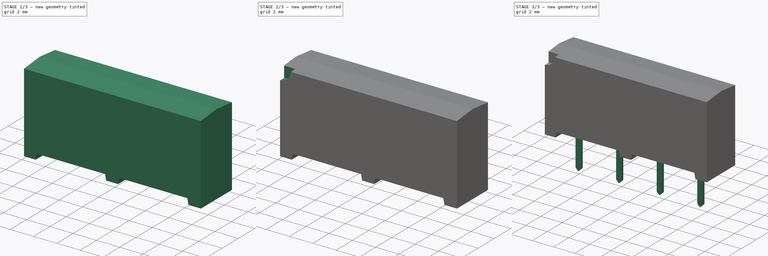
[diagram: build sequence overview — one tinted view per stage of 3, left to right]
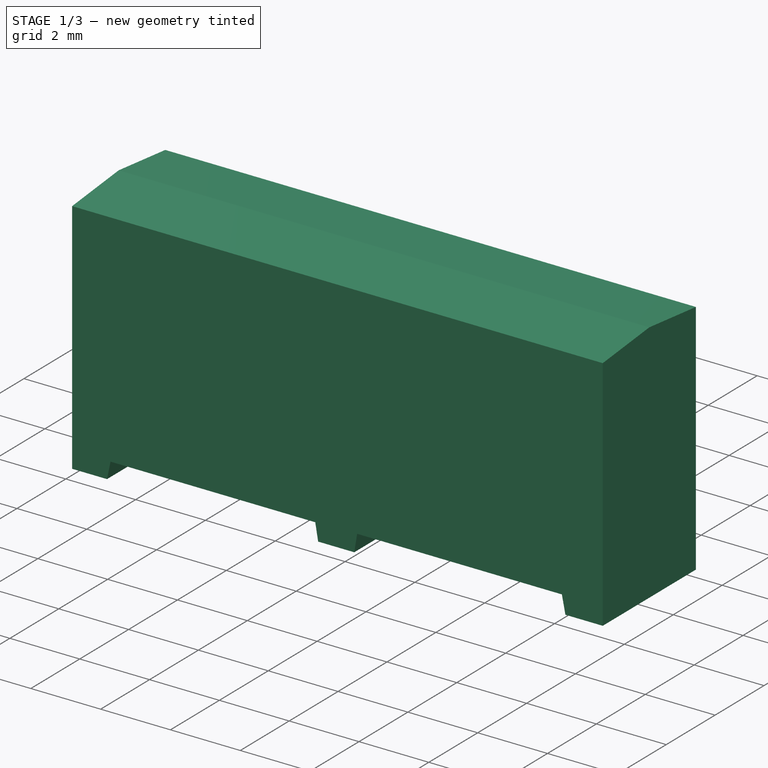
[diagram: stage 1 of 3 — iso view after this stage's code; geometry added in this stage tinted green]
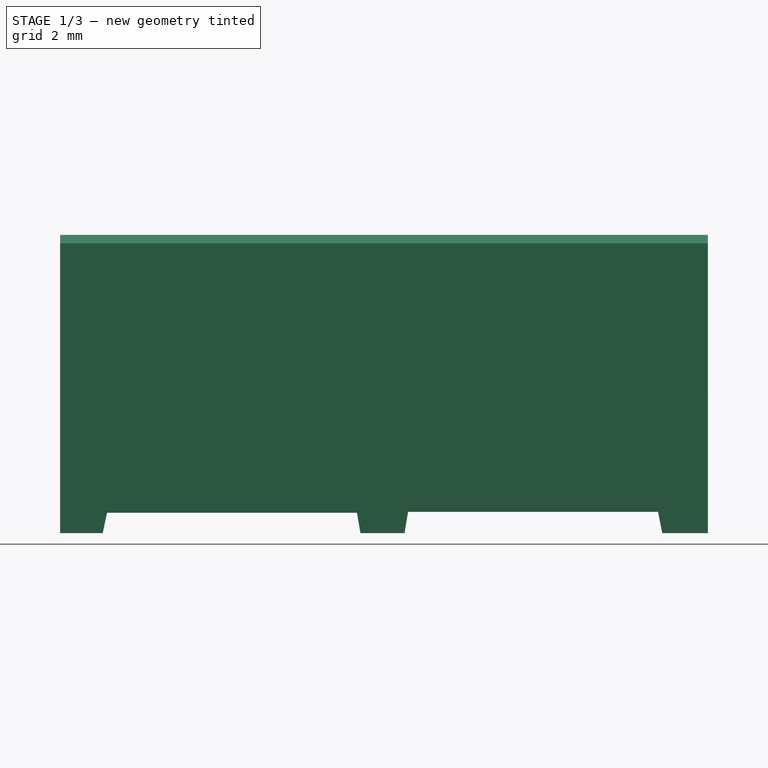
[diagram: stage 1 of 3 — front view after this stage's code; geometry added in this stage tinted green]
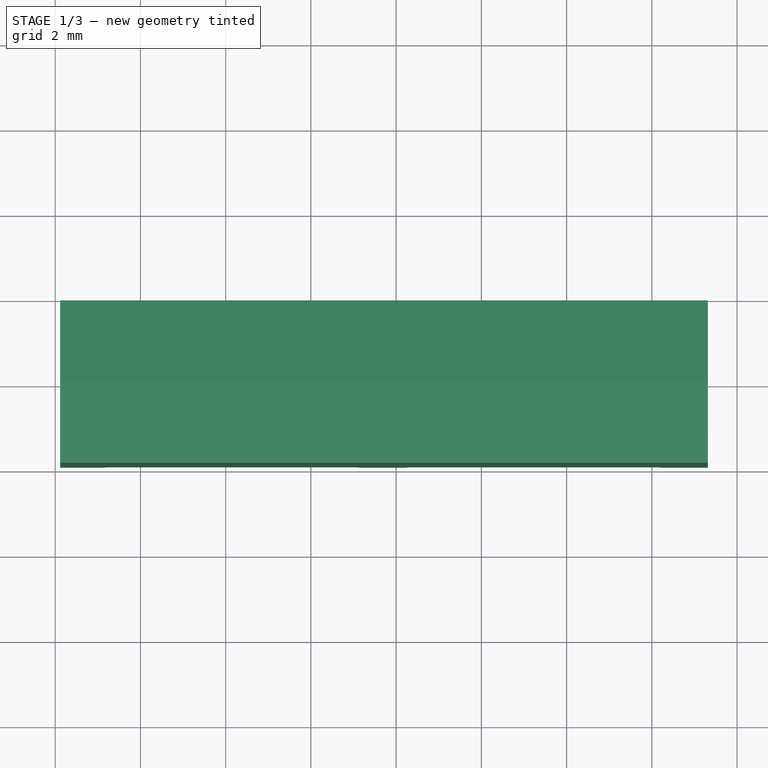
[diagram: stage 1 of 3 — top view after this stage's code; geometry added in this stage tinted green]
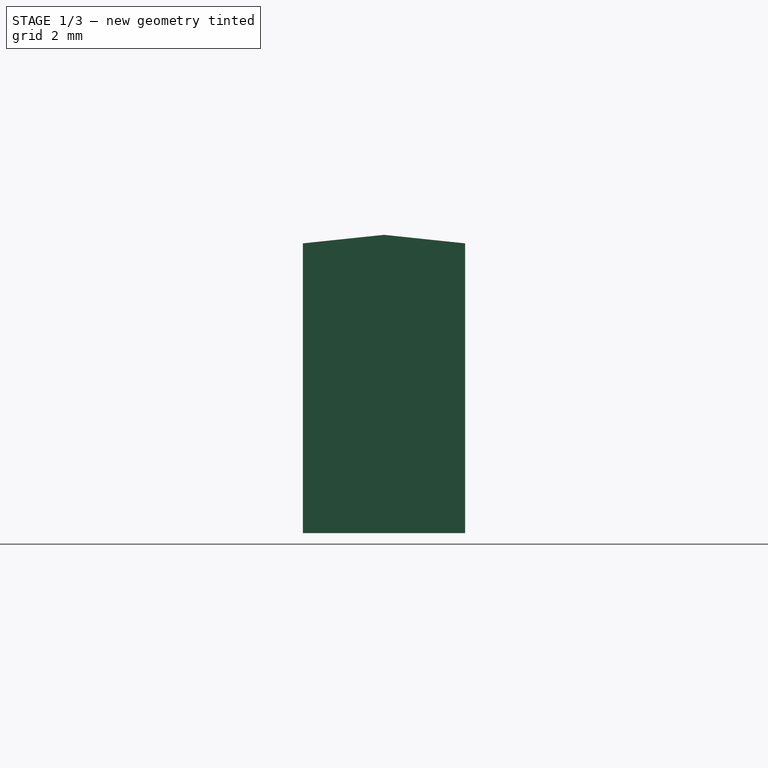
[diagram: stage 1 of 3 — right view after this stage's code; geometry added in this stage tinted green]
FCSTD DOCUMENT  (FreeCAD 0.16R6712 (Git))
Label: Relay_SPST_StandexMeder_MS_Form1AB
License: All rights reserved
LicenseURL: http://en.wikipedia.org/wiki/All_rights_reserved
objects: Sketcher::SketchObject×4, Part::Feature×3, PartDesign::Pad×2, PartDesign::Pocket×2, App::DocumentObjectGroup×1, Part::MultiFuse×1
note: 16 computed .brp shape members not serialized (recipe doc carries the construction recipe); baked Part::Feature solids carry a one-line shape summary decoded from their .brp

FEATURE [Sketcher::SketchObject] Sketch
  Placement = pos=(-1.885,0,0) rot=(0.57735,0.57735,0.57735;2.0944rad)
  expr: Placement.Base.x = -1 * (15.2 - 11.43) / 2
  sketch-geometry (6):
    g0: LineSegment StartX=-1.905 StartY=0.1 StartZ=0 EndX=1.905 EndY=0.1 EndZ=0
    g1: LineSegment StartX=1.905 StartY=0.1 StartZ=0 EndX=1.905 EndY=6.9 EndZ=0
    g2: LineSegment StartX=1.905 StartY=6.9 StartZ=0 EndX=0 EndY=7.1 EndZ=0
    g3: LineSegment StartX=0 StartY=7.1 StartZ=0 EndX=-1.905 EndY=6.9 EndZ=0
    g4: LineSegment StartX=-1.905 StartY=6.9 StartZ=0 EndX=-1.905 EndY=0.1 EndZ=0
    g5: GeomPoint [constr] X=0 Y=0.1 Z=0
  constraints (17):
    c: Horizontal(g0)
    c: Coincident(g1,g0)
    c: Vertical(g1)
    c: PointOnObject(g2,g-2)
    c: Coincident(g3,g2)
    c: Vertical(g4)
    c: Coincident(g0,g4)
    c: Coincident(g3,g4)
    c: Equal(g1,g4)
    c: PointOnObject(g5,g-2)
    c: PointOnObject(g5,g0)
    c: Symmetric(g0,g0,g5)
    c: Coincident(g1,g2)
    c: DistanceY(g1,g1) = 6.8
    c: DistanceY(g1,g2) = 0.2
    c: DistanceY(g-1,g0) = 0.1
    c: DistanceX(g0,g0) = 3.81
FEATURE [PartDesign::Pad] Pad
  Length = 15.2
  Length2 = 100
  Placement = pos=(-1.885,0,0) rot=(0.57735,0.57735,0.57735;2.0944rad)
  Sketch = -> Sketch
  Type = 0
FEATURE [Sketcher::SketchObject] Sketch001
  ExternalGeometry = -> [Pad]
  Placement = pos=(-1.885,-1.905,0) rot=(0.57735,0.57735,-0.57735;2.0944rad)
  Support = -> Pad [Face5]
  sketch-geometry (12):
    g0: LineSegment StartX=-0.1 StartY=14.13 StartZ=0 EndX=-0.6 EndY=14.03 EndZ=0
    g1: LineSegment StartX=-0.578864 StartY=1.1 StartZ=0 EndX=-0.1 EndY=1 EndZ=0
    g2: LineSegment [constr] StartX=-0.1 StartY=14.13 StartZ=0 EndX=-0.1 EndY=13.8204 EndZ=0
    g3: LineSegment [constr] StartX=-0.1 StartY=0 StartZ=0 EndX=-0.1 EndY=1 EndZ=0
    g4: LineSegment StartX=-0.6 StartY=14.03 StartZ=0 EndX=-0.6 EndY=8.165 EndZ=0
    g5: LineSegment StartX=-0.6 StartY=8.165 StartZ=0 EndX=0 EndY=8.065 EndZ=0
    g6: LineSegment StartX=0 StartY=8.065 StartZ=0 EndX=0 EndY=7.065 EndZ=0
    g7: LineSegment StartX=0 StartY=7.065 StartZ=0 EndX=-0.578864 EndY=6.965 EndZ=0
    g8: LineSegment StartX=-0.578864 StartY=6.965 StartZ=0 EndX=-0.578864 EndY=1.1 EndZ=0
    g9: LineSegment StartX=-0.1 StartY=1 StartZ=0 EndX=0.634477 EndY=1 EndZ=0
    g10: LineSegment StartX=0.634477 StartY=1 StartZ=0 EndX=0.634477 EndY=14.13 EndZ=0
    g11: LineSegment StartX=0.634477 StartY=14.13 StartZ=0 EndX=-0.1 EndY=14.13 EndZ=0
  constraints (30):
    c: Coincident(g2,g0)
    c: Coincident(g3,g1)
    c: DistanceY(g3,g1) = 1
    c: DistanceY(g1,g1) = 0.1
    c: DistanceY(g0,g0) = 0.1
    c: DistanceX(g0,g0) = 0.5
    c: Coincident(g4,g0)
    c: Vertical(g4)
    c: Coincident(g5,g4)
    c: Coincident(g6,g5)
    c: PointOnObject(g6,g-2)
    c: Vertical(g6)
    c: Coincident(g7,g6)
    c: Coincident(g8,g7)
    c: Coincident(g8,g1)
    c: Vertical(g8)
    c: Coincident(g9,g1)
    c: Coincident(g10,g9)
    c: Vertical(g10)
    c: Coincident(g11,g10)
    c: Coincident(g11,g0)
    c: Horizontal(g11)
    c: Horizontal(g9)
    c: Equal(g8,g4)
    c: DistanceY(g7,g6) = 0.1
    c: DistanceY(g5,g4) = 0.1
    c: DistanceY(g6,g6) = 1
    c: PointOnObject(g3,g-1)
    c: DistanceY(g10,g10) = 13.13
    c: Vertical(g2)
FEATURE [PartDesign::Pocket] Pocket
  Length = 5
  Placement = pos=(-1.885,0,0) rot=(0.57735,0.57735,0.57735;2.0944rad)
  Sketch = -> Sketch001
  Type = 1
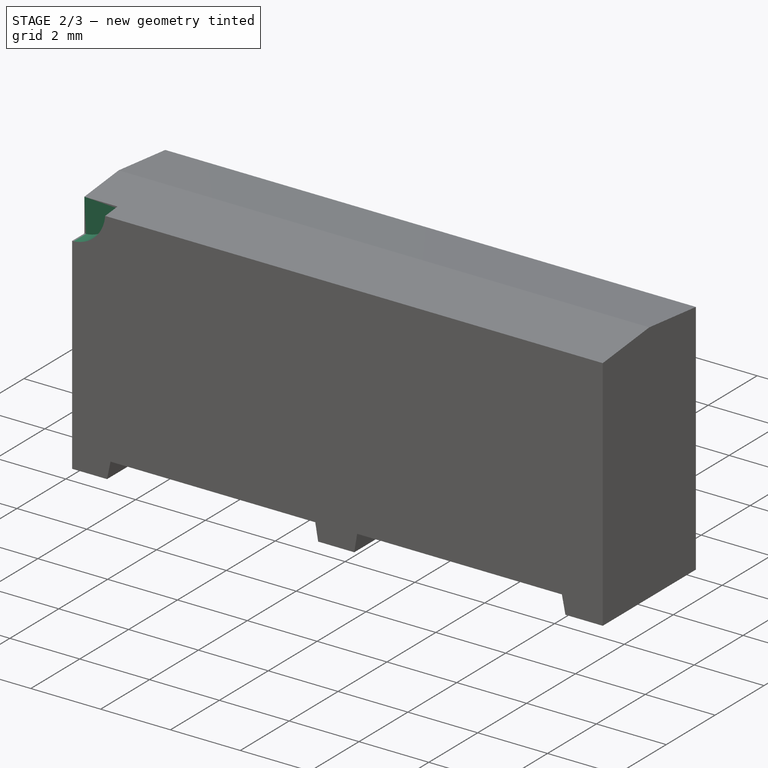
[diagram: stage 2 of 3 — iso view after this stage's code; geometry added in this stage tinted green]
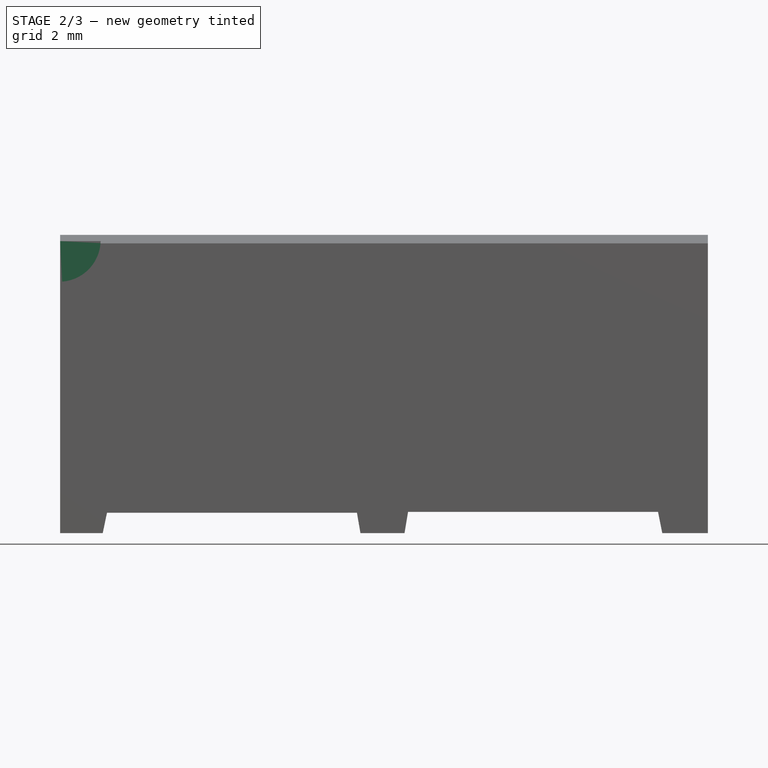
[diagram: stage 2 of 3 — front view after this stage's code; geometry added in this stage tinted green]
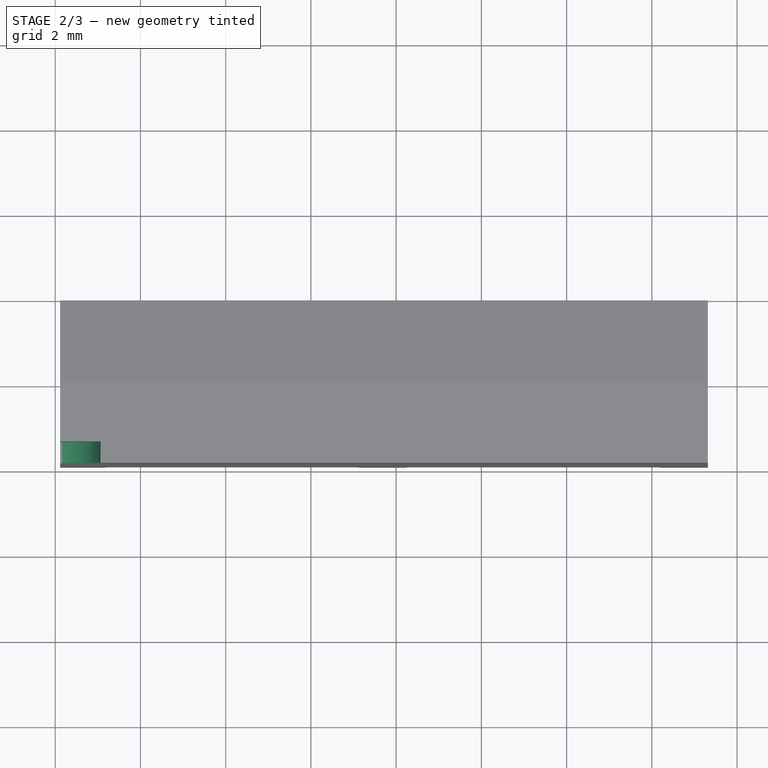
[diagram: stage 2 of 3 — top view after this stage's code; geometry added in this stage tinted green]
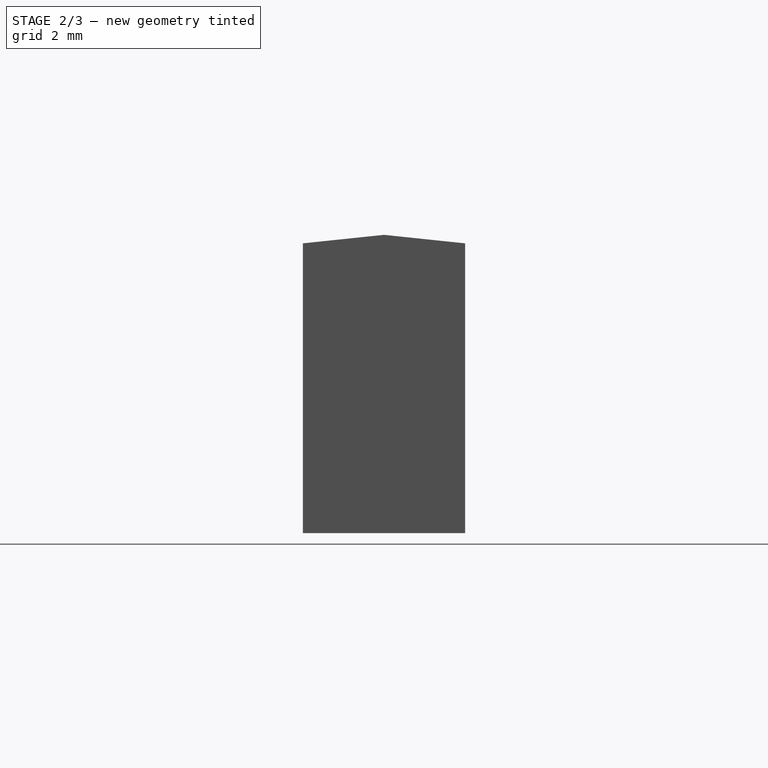
[diagram: stage 2 of 3 — right view after this stage's code; geometry added in this stage tinted green]
FEATURE [Part::Feature] FusionAxisZ1  label="Z"
  shape: bbox 0.8 x 0.8 x 14 mm, 8 faces (baked)
FEATURE [Part::Feature] FusionAxisY1  label="Y"
  Placement = pos=(0,0,0.05) rot=(-1,0,0;1.5708rad)
  shape: bbox 0.8 x 14 x 0.8 mm, 8 faces (baked)
FEATURE [Part::Feature] FusionAxisX1  label="X"
  Placement = pos=(0,-0.05,0) rot=(0,1,0;1.5708rad)
  shape: bbox 14 x 0.8 x 0.8 mm, 8 faces (baked)
FEATURE [App::DocumentObjectGroup] axis
  Group = -> [FusionAxisZ1,FusionAxisY1,FusionAxisX1]
FEATURE [Sketcher::SketchObject] Sketch003
  Placement = pos=(-1.885,-1.905,0) rot=(0.57735,0.57735,-0.57735;2.0944rad)
  Support = -> Pocket [Face5]
  sketch-geometry (5):
    g0: LineSegment StartX=-7 StartY=-0.05 StartZ=0 EndX=-6 EndY=-0.05 EndZ=0
    g1: LineSegment StartX=-6 StartY=-0.05 StartZ=0 EndX=-6 EndY=-0.025 EndZ=0
    g2: LineSegment StartX=-6.975 StartY=0.95 StartZ=0 EndX=-7 EndY=0.95 EndZ=0
    g3: LineSegment StartX=-7 StartY=0.95 StartZ=0 EndX=-7 EndY=-0.05 EndZ=0
    g4: ArcOfCircle CenterX=-6.975 CenterY=-0.025 CenterZ=0 NormalX=0 NormalY=0 NormalZ=1 Radius=0.975 StartAngle=0 EndAngle=1.5708
  constraints (14):
    c: Coincident(g2,g3)
    c: Coincident(g3,g0)
    c: Horizontal(g0)
    c: Horizontal(g2)
    c: Vertical(g3)
    c: Tangent(g1,g4) = -1.5708
    c: Tangent(g2,g4) = -1.5708
    c: Vertical(g1)
    c: DistanceX(g0,g0) = 1
    c: DistanceX(g0,g-1) = 7
    c: DistanceY(g3,g3) = 1
    c: Coincident(g1,g0)
    c: DistanceY(g0,g-1) = 0.05
    c: DistanceY(g0,g1) = 0.025
FEATURE [PartDesign::Pocket] Pocket001
  Length = 0.5
  Placement = pos=(-1.885,0,0) rot=(0.57735,0.57735,0.57735;2.0944rad)
  Sketch = -> Sketch003
  Type = 0
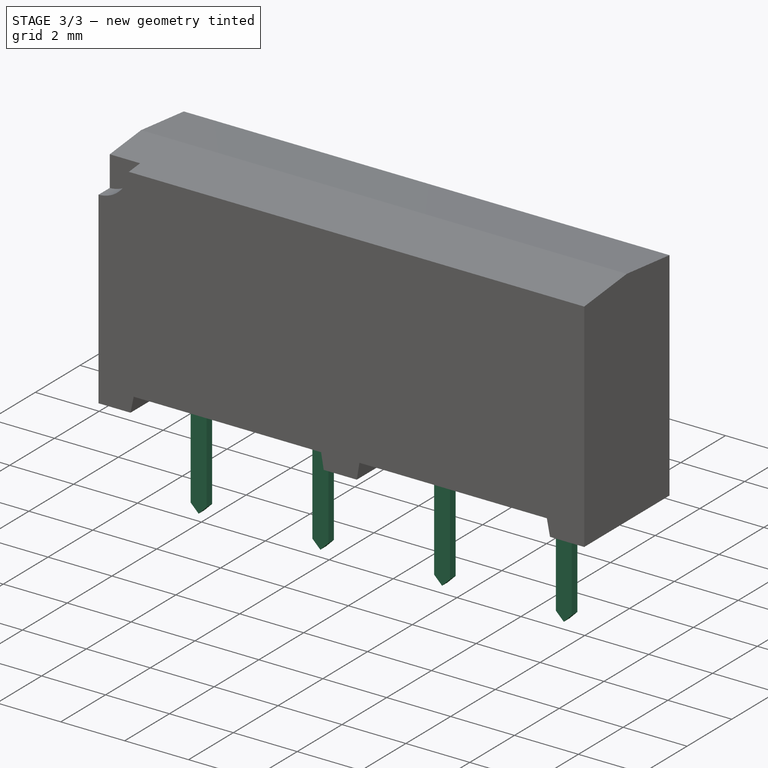
[diagram: stage 3 of 3 — iso view after this stage's code; geometry added in this stage tinted green]
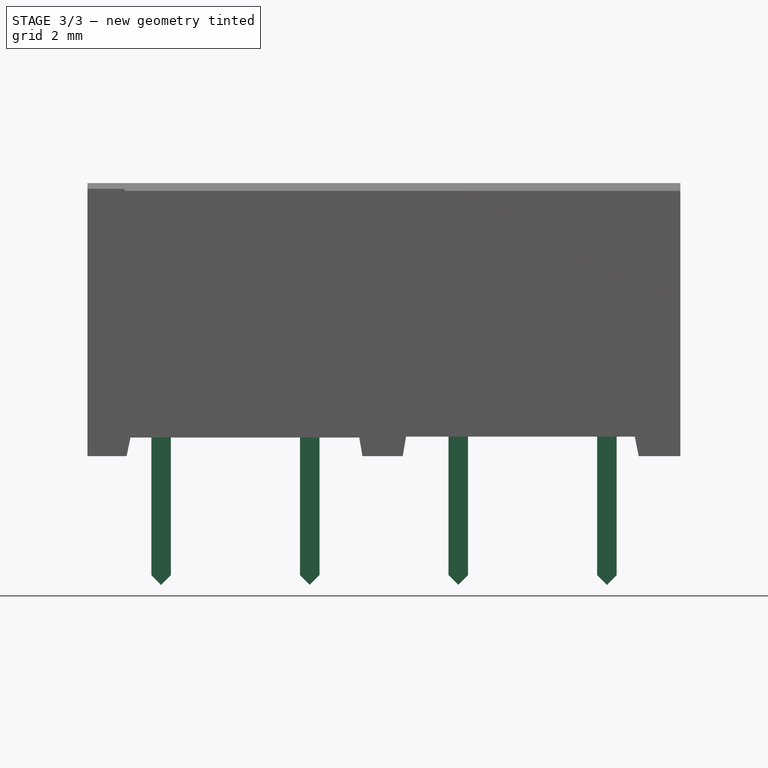
[diagram: stage 3 of 3 — front view after this stage's code; geometry added in this stage tinted green]
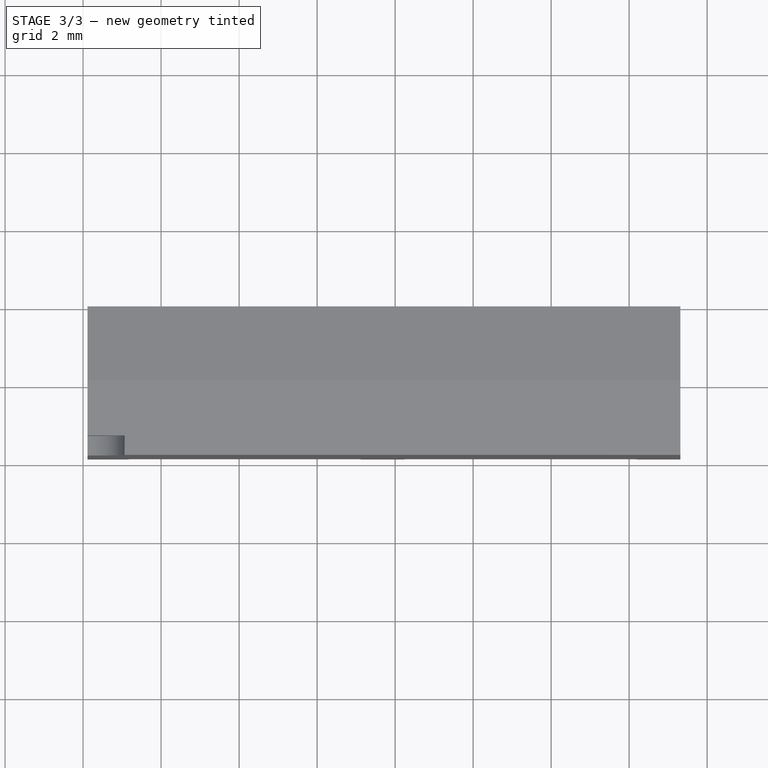
[diagram: stage 3 of 3 — top view after this stage's code; geometry added in this stage tinted green]
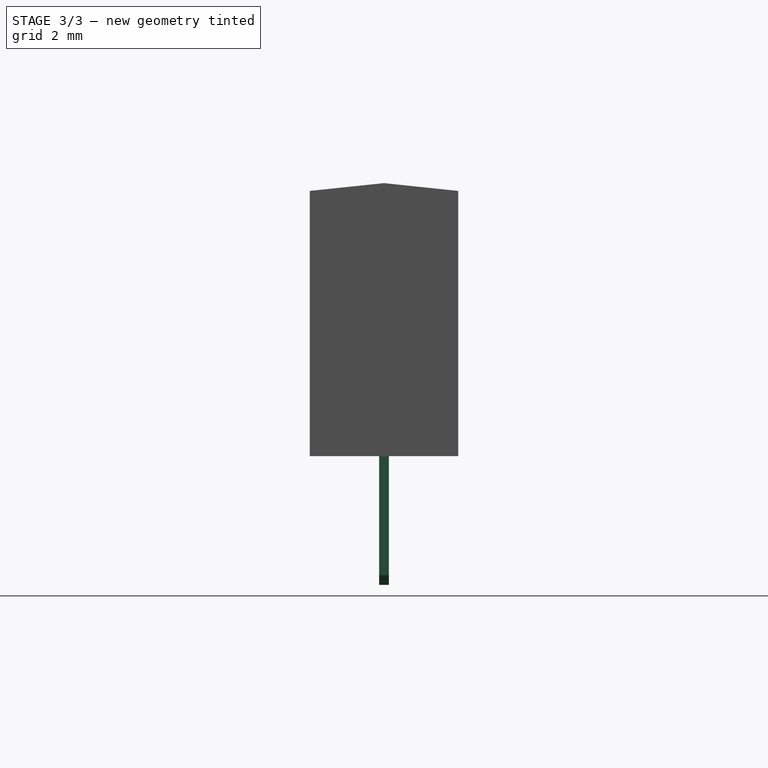
[diagram: stage 3 of 3 — right view after this stage's code; geometry added in this stage tinted green]
FEATURE [Sketcher::SketchObject] Sketch002
  Placement = pos=(0,0,0) rot=(1,0,0;1.5708rad)
  sketch-geometry (27):
    g0: LineSegment StartX=-0.25 StartY=1 StartZ=0 EndX=0.25 EndY=1 EndZ=0
    g1: LineSegment StartX=0.25 StartY=1 StartZ=0 EndX=0.25 EndY=-2.95 EndZ=0
    g2: LineSegment StartX=0.25 StartY=-2.95 StartZ=0 EndX=0 EndY=-3.2 EndZ=0
    g3: LineSegment StartX=0 StartY=-3.2 StartZ=0 EndX=-0.25 EndY=-2.95 EndZ=0
    g4: LineSegment StartX=-0.25 StartY=-2.95 StartZ=0 EndX=-0.25 EndY=1 EndZ=0
    g5: LineSegment StartX=3.56 StartY=1 StartZ=0 EndX=4.06 EndY=1 EndZ=0
    g6: LineSegment StartX=4.06 StartY=1 StartZ=0 EndX=4.06 EndY=-2.95 EndZ=0
    g7: LineSegment StartX=4.06 StartY=-2.95 StartZ=0 EndX=3.81 EndY=-3.2 EndZ=0
    g8: LineSegment StartX=3.81 StartY=-3.2 StartZ=0 EndX=3.56 EndY=-2.95 EndZ=0
    g9: LineSegment StartX=3.56 StartY=-2.95 StartZ=0 EndX=3.56 EndY=1 EndZ=0
    g10: LineSegment StartX=7.37 StartY=1 StartZ=0 EndX=7.87 EndY=1 EndZ=0
    g11: LineSegment StartX=7.87 StartY=1 StartZ=0 EndX=7.87 EndY=-2.95 EndZ=0
    g12: LineSegment StartX=7.87 StartY=-2.95 StartZ=0 EndX=7.62 EndY=-3.2 EndZ=0
    g13: LineSegment StartX=7.62 StartY=-3.2 StartZ=0 EndX=7.37 EndY=-2.95 EndZ=0
    g14: LineSegment StartX=7.37 StartY=-2.95 StartZ=0 EndX=7.37 EndY=1 EndZ=0
    g15: LineSegment StartX=11.18 StartY=1 StartZ=0 EndX=11.68 EndY=1 EndZ=0
    g16: LineSegment StartX=11.68 StartY=1 StartZ=0 EndX=11.68 EndY=-2.95 EndZ=0
    g17: LineSegment StartX=11.68 StartY=-2.95 StartZ=0 EndX=11.43 EndY=-3.2 EndZ=0
    g18: LineSegment StartX=11.43 StartY=-3.2 StartZ=0 EndX=11.18 EndY=-2.95 EndZ=0
    g19: LineSegment StartX=11.18 StartY=-2.95 StartZ=0 EndX=11.18 EndY=1 EndZ=0
    g20: LineSegment [constr] StartX=3.81 StartY=1 StartZ=0 EndX=3.81 EndY=-3.2 EndZ=0
    g21: LineSegment [constr] StartX=7.62 StartY=1 StartZ=0 EndX=7.62 EndY=-3.2 EndZ=0
    g22: LineSegment [constr] StartX=11.43 StartY=1 StartZ=0 EndX=11.43 EndY=-3.2 EndZ=0
    g23: GeomPoint [constr] X=0 Y=1 Z=0
    g24: LineSegment [constr] StartX=11.18 StartY=1 StartZ=0 EndX=-0.25 EndY=1 EndZ=0
    g25: LineSegment [constr] StartX=0 StartY=-3.2 StartZ=0 EndX=11.43 EndY=-3.2 EndZ=0
    g26: LineSegment [constr] StartX=0.25 StartY=-2.95 StartZ=0 EndX=11.68 EndY=-2.95 EndZ=0
  constraints (75):
    c: Horizontal(g0)
    c: Coincident(g2,g1)
    c: PointOnObject(g2,g-2)
    c: Coincident(g2,g3)
    c: DistanceY(g2,g3) = 0.25
    c: Equal(g1,g4)
    c: DistanceY(g-1,g0) = 1
    c: Horizontal(g5)
    c: Vertical(g6)
    c: Coincident(g7,g6)
    c: Coincident(g9,g5)
    c: Vertical(g9)
    c: Coincident(g8,g9)
    c: Coincident(g7,g8)
    c: Equal(g6,g9)
    c: Coincident(g5,g6)
    c: Horizontal(g10)
    c: Vertical(g11)
    c: Coincident(g12,g11)
    c: Coincident(g14,g10)
    c: Vertical(g14)
    c: Coincident(g13,g14)
    c: Coincident(g12,g13)
    c: Equal(g11,g14)
    c: Coincident(g10,g11)
    c: Horizontal(g15)
    c: Vertical(g16)
    c: Coincident(g17,g16)
    c: Coincident(g19,g15)
    c: Vertical(g19)
    c: Coincident(g18,g19)
    c: Coincident(g17,g18)
    c: Equal(g16,g19)
    c: Coincident(g15,g16)
    c: Equal(g9,g4)
    c: Equal(g4,g14)
    c: Equal(g14,g19)
    c: Coincident(g20,g7)
    c: Vertical(g20)
    c: Vertical(g21)
    c: Coincident(g22,g17)
    c: Vertical(g22)
    c: Coincident(g12,g21)
    c: Symmetric(g15,g15,g22)
    c: Symmetric(g10,g10,g21)
    c: Symmetric(g5,g5,g20)
    c: PointOnObject(g23,g-2)
    c: Coincident(g24,g15)
    c: Coincident(g24,g0)
    c: Horizontal(g24)
    c: PointOnObject(g5,g24)
    c: PointOnObject(g10,g24)
    c: Coincident(g0,g1)
    c: Vertical(g1)
    c: Symmetric(g0,g0,g23)
    c: Equal(g0,g5)
    c: Equal(g5,g10)
    c: Equal(g10,g15)
    c: DistanceX(g23,g20) = 3.81
    c: DistanceX(g20,g21) = 3.81
    c: DistanceX(g21,g22) = 3.81
    c: Equal(g4,g1)
    c: Coincident(g0,g4)
    c: Coincident(g3,g4)
    c: Coincident(g25,g17)
    c: Horizontal(g25)
    c: PointOnObject(g12,g25)
    c: PointOnObject(g7,g25)
    c: DistanceX(g3,g1) = 0.5
    c: Vertical(g4)
    c: DistanceY(g2,g-1) = 3.2
    c: Coincident(g26,g1)
    c: Coincident(g26,g16)
    c: PointOnObject(g11,g26)
    c: Coincident(g25,g2)
FEATURE [PartDesign::Pad] Pad001
  Length = 0.25
  Length2 = 100
  Midplane = true
  Placement = pos=(0,0,0) rot=(1,0,0;1.5708rad)
  Sketch = -> Sketch002
  Type = 0
FEATURE [Part::MultiFuse] Pad001_mp_cp  label="Relay_SPST_StandexMeder_MS_Form1AB"
  Shapes = -> [Pad001,Pocket001]
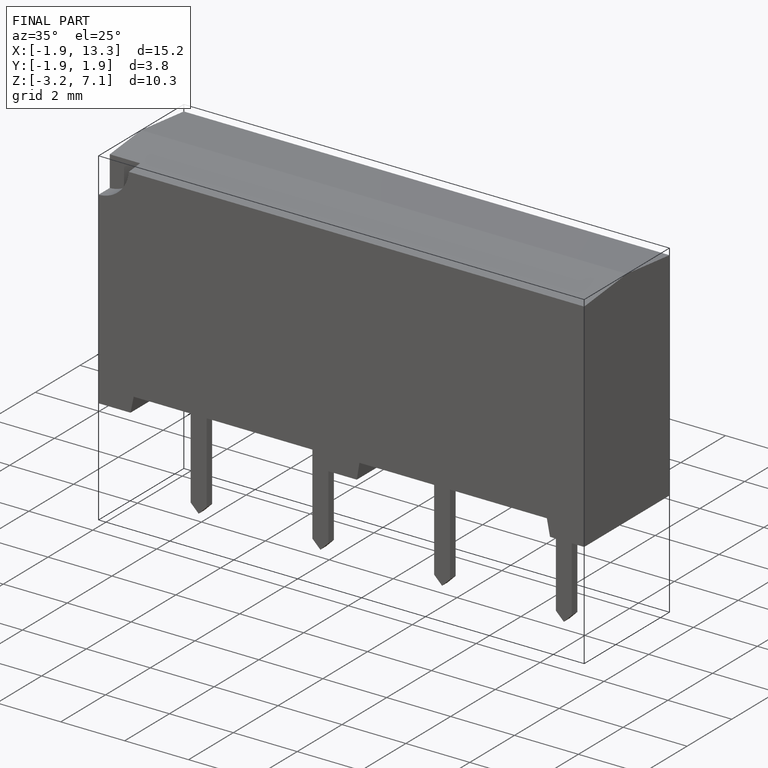
[diagram: finished part — iso view with bounding-box wireframe]
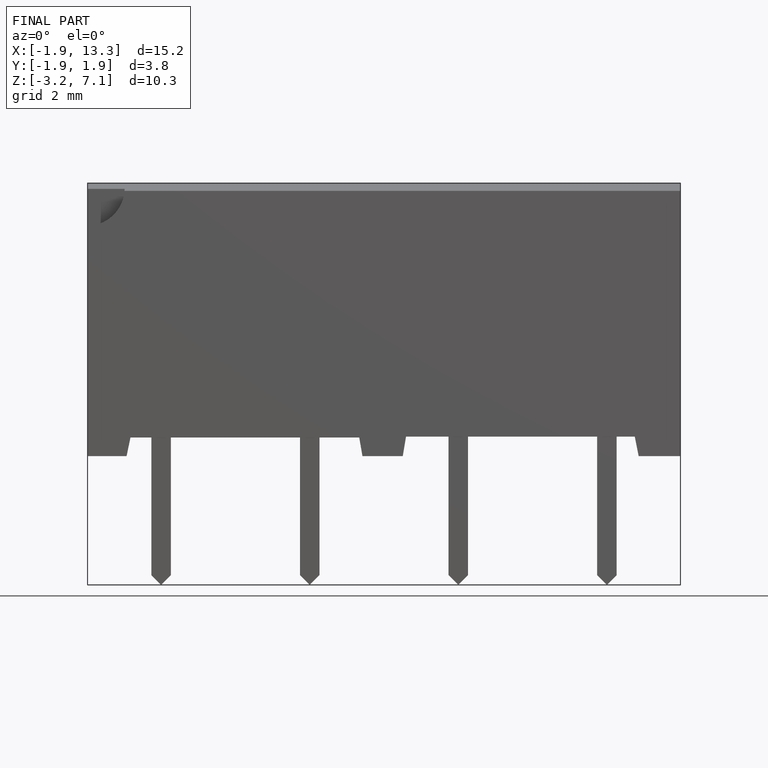
[diagram: finished part — front view with bounding-box wireframe]
